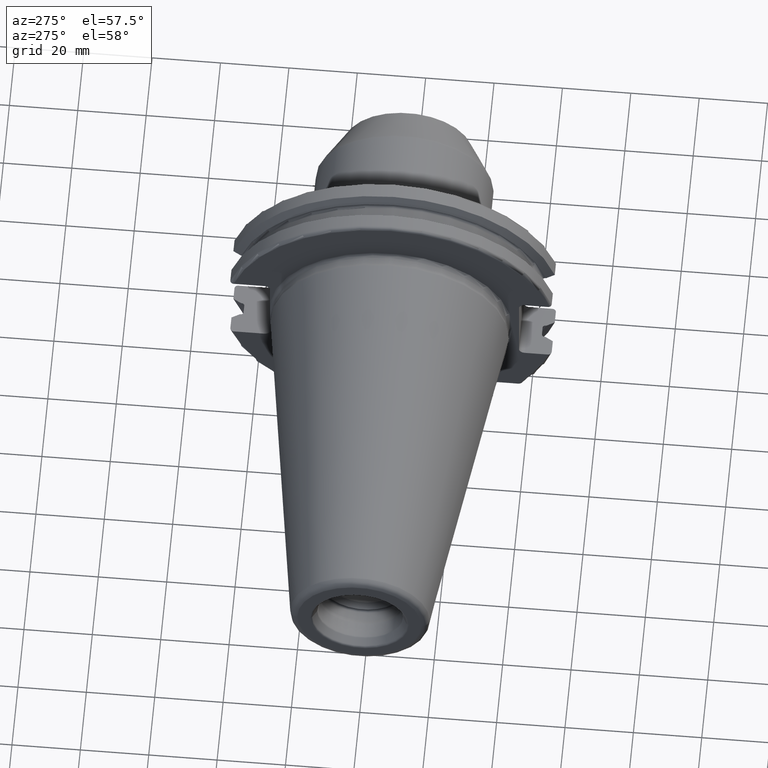
[diagram: clean part render]
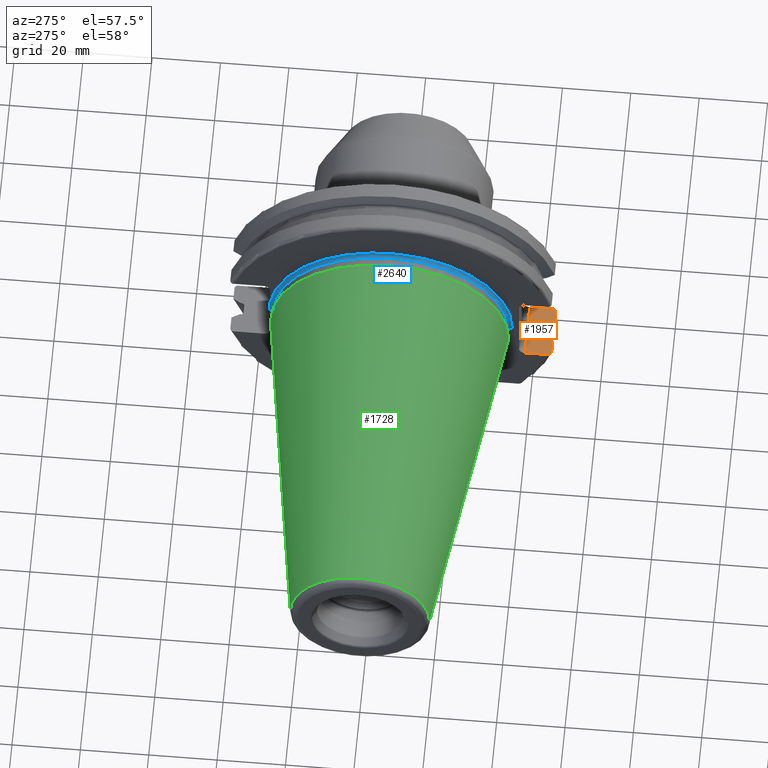
[diagram: same view with three faces highlighted in distinct colors, each labeled with its STEP entity id]
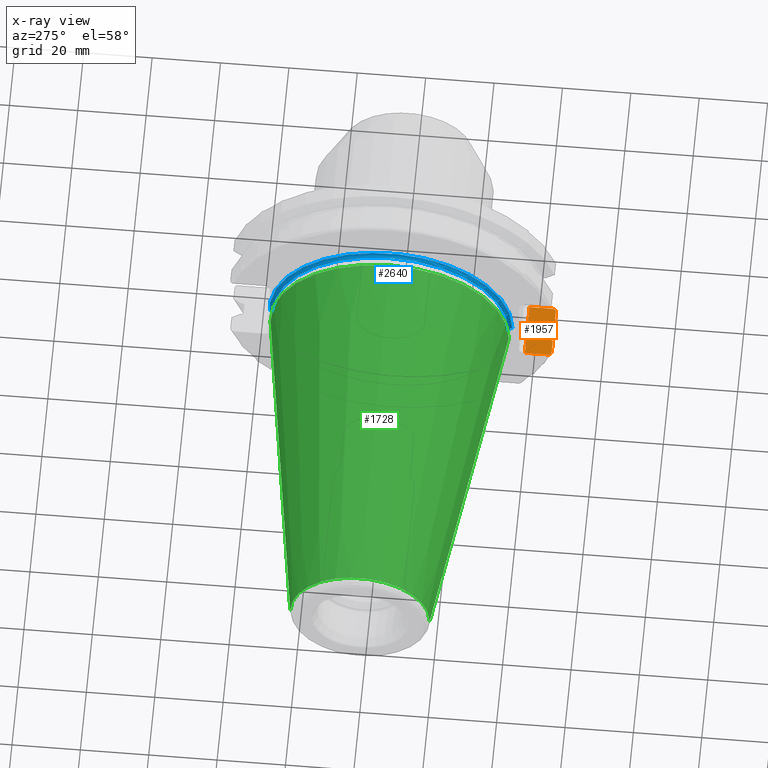
[diagram: x-ray of the same camera — body ghosted, the three highlighted faces saturated]
A machine part, auxiliary view with three faces highlighted in distinct colors.
The next image is the same camera in x-ray (body ghosted, the three faces saturated) — at least one of them is partly hidden behind the body in this view.
Their STEP definitions:

[orange] entity #1957 — the highlighted planar face has unit normal (0, 0, -1).
#168=DIRECTION('',(0.E0,1.E0,0.E0));
#169=VECTOR('',#168,6.711493733886E0);
#170=CARTESIAN_POINT('',(1.905E1,-4.596149373389E1,-1.29E1));
#171=LINE('',#170,#169);
#200=DIRECTION('',(-1.E0,0.E0,0.E0));
#201=VECTOR('',#200,1.585E1);
#202=CARTESIAN_POINT('',(1.905E1,-3.925E1,-1.29E1));
#203=LINE('',#202,#201);
#230=CARTESIAN_POINT('',(1.905E1,-4.596149373389E1,-1.29E1));
#231=CARTESIAN_POINT('',(1.905E1,-4.604025341545E1,-1.29E1));
#232=CARTESIAN_POINT('',(1.903319704314E1,-4.619325673207E1,-1.29E1));
#233=CARTESIAN_POINT('',(1.895943574721E1,-4.641382557540E1,-1.29E1));
#234=CARTESIAN_POINT('',(1.884029019608E1,-4.661163569902E1,-1.29E1));
#235=CARTESIAN_POINT('',(1.868162992187E1,-4.677744958982E1,-1.29E1));
#236=CARTESIAN_POINT('',(1.849033887272E1,-4.690323680095E1,-1.29E1));
#237=CARTESIAN_POINT('',(1.827565953653E1,-4.698148434228E1,-1.29E1));
#238=CARTESIAN_POINT('',(1.812673203795E1,-4.699929686974E1,-1.29E1));
#239=CARTESIAN_POINT('',(1.805E1,-4.699929686974E1,-1.29E1));
#279=DIRECTION('',(0.E0,1.E0,0.E0));
#280=VECTOR('',#279,6.711493733886E0);
#281=CARTESIAN_POINT('',(3.2E0,-4.596149373389E1,-1.29E1));
#282=LINE('',#281,#280);
#465=DIRECTION('',(0.E0,1.E0,0.E0));
#466=VECTOR('',#465,1.952643655423E-1);
#467=CARTESIAN_POINT('',(9.2625E0,-4.460981716077E1,-1.29E1));
#468=LINE('',#467,#466);
#571=DIRECTION('',(0.E0,1.E0,-2.729156701685E-14));
#572=VECTOR('',#571,1.952643655423E-1);
#573=CARTESIAN_POINT('',(1.30875E1,-4.460981716077E1,-1.29E1));
#574=LINE('',#573,#572);
#630=CARTESIAN_POINT('',(1.30875E1,-4.441455279523E1,-1.29E1));
#631=CARTESIAN_POINT('',(1.30875E1,-4.435557140525E1,-1.29E1));
#632=CARTESIAN_POINT('',(1.307499016648E1,-4.424100688760E1,-1.29E1));
#633=CARTESIAN_POINT('',(1.302032710232E1,-4.407610890085E1,-1.29E1));
#634=CARTESIAN_POINT('',(1.293214994527E1,-4.392788522282E1,-1.29E1));
#635=CARTESIAN_POINT('',(1.281390038390E1,-4.380253784054E1,-1.29E1));
#636=CARTESIAN_POINT('',(1.267050623563E1,-4.370675082806E1,-1.29E1));
#637=CARTESIAN_POINT('',(1.250801539042E1,-4.364662320814E1,-1.29E1));
#638=CARTESIAN_POINT('',(1.239551042481E1,-4.363301502303E1,-1.29E1));
#639=CARTESIAN_POINT('',(1.23375E1,-4.363301502303E1,-1.29E1));
#670=DIRECTION('',(1.E0,0.E0,0.E0));
#671=VECTOR('',#670,2.325E0);
#672=CARTESIAN_POINT('',(1.00125E1,-4.363301502303E1,-1.29E1));
#673=LINE('',#672,#671);
#710=CARTESIAN_POINT('',(1.00125E1,-4.363301502303E1,-1.29E1));
#711=CARTESIAN_POINT('',(9.954459038642E0,-4.363301502303E1,-1.29E1));
#712=CARTESIAN_POINT('',(9.841879456025E0,-4.364663453854E1,-1.29E1));
#713=CARTESIAN_POINT('',(9.679181789370E0,-4.370688679607E1,-1.29E1));
#714=CARTESIAN_POINT('',(9.535649484354E0,-4.380290373946E1,-1.29E1));
#715=CARTESIAN_POINT('',(9.417489807997E0,-4.392837618076E1,-1.29E1));
#716=CARTESIAN_POINT('',(9.329516551915E0,-4.407649589532E1,-1.29E1));
#717=CARTESIAN_POINT('',(9.274989387756E0,-4.424117249764E1,-1.29E1));
#718=CARTESIAN_POINT('',(9.2625E0,-4.435562679308E1,-1.29E1));
#719=CARTESIAN_POINT('',(9.2625E0,-4.441455279523E1,-1.29E1));
#781=CARTESIAN_POINT('',(4.2E0,-4.699929686974E1,-1.29E1));
#782=CARTESIAN_POINT('',(4.123252333679E0,-4.699929686974E1,-1.29E1));
#783=CARTESIAN_POINT('',(3.974283567116E0,-4.698148666181E1,-1.29E1));
#784=CARTESIAN_POINT('',(3.759372583830E0,-4.690310671304E1,-1.29E1));
#785=CARTESIAN_POINT('',(3.568100173391E0,-4.677722228850E1,-1.29E1));
#786=CARTESIAN_POINT('',(3.409493655806E0,-4.661135458292E1,-1.29E1));
#787=CARTESIAN_POINT('',(3.290442678355E0,-4.641353235870E1,-1.29E1));
#788=CARTESIAN_POINT('',(3.216801719921E0,-4.619318544857E1,-1.29E1));
#789=CARTESIAN_POINT('',(3.2E0,-4.604023191736E1,-1.29E1));
#790=CARTESIAN_POINT('',(3.2E0,-4.596149373389E1,-1.29E1));
#839=DIRECTION('',(1.E0,0.E0,0.E0));
#840=VECTOR('',#839,3.734621614173E0);
#841=CARTESIAN_POINT('',(4.2E0,-4.699929686974E1,-1.29E1));
#842=LINE('',#841,#840);
#852=DIRECTION('',(1.E0,0.E0,0.E0));
#853=VECTOR('',#852,3.634621614173E0);
#854=CARTESIAN_POINT('',(1.441537838583E1,-4.699929686974E1,-1.29E1));
#855=LINE('',#854,#853);
#884=CARTESIAN_POINT('',(7.934621614173E0,-4.699929686974E1,-1.29E1));
#885=CARTESIAN_POINT('',(8.085480915039E0,-4.672833723043E1,-1.29E1));
#886=CARTESIAN_POINT('',(8.384988643814E0,-4.619006057421E1,-1.29E1));
#887=CARTESIAN_POINT('',(8.827579780447E0,-4.539363402665E1,-1.29E1));
#888=CARTESIAN_POINT('',(9.118260754177E0,-4.486988275438E1,-1.29E1));
#889=CARTESIAN_POINT('',(9.2625E0,-4.460981716077E1,-1.29E1));
#917=CARTESIAN_POINT('',(1.441537838583E1,-4.699929686974E1,-1.29E1));
#918=CARTESIAN_POINT('',(1.426451908496E1,-4.672833723043E1,-1.29E1));
#919=CARTESIAN_POINT('',(1.396501135619E1,-4.619006057421E1,-1.29E1));
#920=CARTESIAN_POINT('',(1.352242021955E1,-4.539363402665E1,-1.29E1));
#921=CARTESIAN_POINT('',(1.323173924582E1,-4.486988275438E1,-1.29E1));
#922=CARTESIAN_POINT('',(1.30875E1,-4.460981716077E1,-1.29E1));
#1476=CARTESIAN_POINT('',(9.2625E0,-4.460981716077E1,-1.29E1));
#1477=CARTESIAN_POINT('',(9.2625E0,-4.441455279523E1,-1.29E1));
#1478=VERTEX_POINT('',#1476);
#1479=VERTEX_POINT('',#1477);
#1498=CARTESIAN_POINT('',(1.30875E1,-4.460981716077E1,-1.29E1));
#1499=CARTESIAN_POINT('',(1.30875E1,-4.441455279523E1,-1.29E1));
#1500=VERTEX_POINT('',#1498);
#1501=VERTEX_POINT('',#1499);
#1509=VERTEX_POINT('',#710);
#1512=CARTESIAN_POINT('',(1.23375E1,-4.363301502303E1,-1.29E1));
#1513=VERTEX_POINT('',#1512);
#1515=VERTEX_POINT('',#917);
#1517=VERTEX_POINT('',#884);
#1530=CARTESIAN_POINT('',(4.2E0,-4.699929686974E1,-1.29E1));
#1531=VERTEX_POINT('',#1530);
#1532=CARTESIAN_POINT('',(1.805E1,-4.699929686974E1,-1.29E1));
#1533=VERTEX_POINT('',#1532);
#1542=VERTEX_POINT('',#230);
#1544=VERTEX_POINT('',#790);
#1573=CARTESIAN_POINT('',(1.905E1,-3.925E1,-1.29E1));
#1574=CARTESIAN_POINT('',(3.2E0,-3.925E1,-1.29E1));
#1575=VERTEX_POINT('',#1573);
#1576=VERTEX_POINT('',#1574);
#1924=CARTESIAN_POINT('',(1.905E1,-5.25E1,-1.29E1));
#1925=DIRECTION('',(0.E0,0.E0,-1.E0));
#1926=DIRECTION('',(0.E0,1.E0,0.E0));
#1927=AXIS2_PLACEMENT_3D('',#1924,#1925,#1926);
#1928=PLANE('',#1927);
#1929=ORIENTED_EDGE('',*,*,#1917,.F.);
#1930=ORIENTED_EDGE('',*,*,#1882,.F.);
#1932=ORIENTED_EDGE('',*,*,#1931,.T.);
#1934=ORIENTED_EDGE('',*,*,#1933,.F.);
#1936=ORIENTED_EDGE('',*,*,#1935,.T.);
#1938=ORIENTED_EDGE('',*,*,#1937,.T.);
#1940=ORIENTED_EDGE('',*,*,#1939,.T.);
#1942=ORIENTED_EDGE('',*,*,#1941,.F.);
#1944=ORIENTED_EDGE('',*,*,#1943,.T.);
#1946=ORIENTED_EDGE('',*,*,#1945,.F.);
#1948=ORIENTED_EDGE('',*,*,#1947,.F.);
#1950=ORIENTED_EDGE('',*,*,#1949,.F.);
#1952=ORIENTED_EDGE('',*,*,#1951,.T.);
#1954=ORIENTED_EDGE('',*,*,#1953,.T.);
#1955=EDGE_LOOP('',(#1929,#1930,#1932,#1934,#1936,#1938,#1940,#1942,#1944,#1946,
#1948,#1950,#1952,#1954));
#1956=FACE_OUTER_BOUND('',#1955,.F.);
#1957=ADVANCED_FACE('',(#1956),#1928,.F.);
#240=B_SPLINE_CURVE_WITH_KNOTS('',3,(#230,#231,#232,#233,#234,#235,#236,#237,
#238,#239),.UNSPECIFIED.,.F.,.F.,(4,1,1,1,1,1,1,4),(0.E0,1.428571428571E-1,
2.857142857143E-1,4.285714285714E-1,5.714285714286E-1,7.142857142857E-1,
8.571428571429E-1,1.E0),.UNSPECIFIED.);
#640=B_SPLINE_CURVE_WITH_KNOTS('',3,(#630,#631,#632,#633,#634,#635,#636,#637,
#638,#639),.UNSPECIFIED.,.F.,.F.,(4,1,1,1,1,1,1,4),(0.E0,1.428571428571E-1,
2.857142857143E-1,4.285714285714E-1,5.714285714286E-1,7.142857142857E-1,
8.571428571429E-1,1.E0),.UNSPECIFIED.);
#720=B_SPLINE_CURVE_WITH_KNOTS('',3,(#710,#711,#712,#713,#714,#715,#716,#717,
#718,#719),.UNSPECIFIED.,.F.,.F.,(4,1,1,1,1,1,1,4),(0.E0,1.428571428571E-1,
2.857142857143E-1,4.285714285714E-1,5.714285714286E-1,7.142857142857E-1,
8.571428571429E-1,1.E0),.UNSPECIFIED.);
#791=B_SPLINE_CURVE_WITH_KNOTS('',3,(#781,#782,#783,#784,#785,#786,#787,#788,
#789,#790),.UNSPECIFIED.,.F.,.F.,(4,1,1,1,1,1,1,4),(0.E0,1.428571428571E-1,
2.857142857143E-1,4.285714285714E-1,5.714285714286E-1,7.142857142857E-1,
8.571428571429E-1,1.E0),.UNSPECIFIED.);
#890=B_SPLINE_CURVE_WITH_KNOTS('',3,(#884,#885,#886,#887,#888,#889),
.UNSPECIFIED.,.F.,.F.,(4,1,1,4),(0.E0,3.333333333333E-1,6.666666666667E-1,1.E0),
.UNSPECIFIED.);
#923=B_SPLINE_CURVE_WITH_KNOTS('',3,(#917,#918,#919,#920,#921,#922),
.UNSPECIFIED.,.F.,.F.,(4,1,1,4),(0.E0,3.333333333333E-1,6.666666666667E-1,1.E0),
.UNSPECIFIED.);
#1882=EDGE_CURVE('',#1542,#1575,#171,.T.);
#1917=EDGE_CURVE('',#1575,#1576,#203,.T.);
#1931=EDGE_CURVE('',#1542,#1533,#240,.T.);
#1933=EDGE_CURVE('',#1515,#1533,#855,.T.);
#1935=EDGE_CURVE('',#1515,#1500,#923,.T.);
#1937=EDGE_CURVE('',#1500,#1501,#574,.T.);
#1939=EDGE_CURVE('',#1501,#1513,#640,.T.);
#1941=EDGE_CURVE('',#1509,#1513,#673,.T.);
#1943=EDGE_CURVE('',#1509,#1479,#720,.T.);
#1945=EDGE_CURVE('',#1478,#1479,#468,.T.);
#1947=EDGE_CURVE('',#1517,#1478,#890,.T.);
#1949=EDGE_CURVE('',#1531,#1517,#842,.T.);
#1951=EDGE_CURVE('',#1531,#1544,#791,.T.);
#1953=EDGE_CURVE('',#1544,#1576,#282,.T.);

[blue] entity #2640 — the highlighted toroidal blend (fillet) surface has major radius 35.575 mm and minor (blend) radius 1 mm.
#78=CARTESIAN_POINT('',(2.2E0,0.E0,0.E0));
#79=DIRECTION('',(1.E0,0.E0,0.E0));
#80=DIRECTION('',(0.E0,1.E0,0.E0));
#81=AXIS2_PLACEMENT_3D('',#78,#79,#80);
#107=CARTESIAN_POINT('',(2.2E0,3.5575E1,0.E0));
#108=DIRECTION('',(0.E0,0.E0,-1.E0));
#109=DIRECTION('',(9.614442261515E-1,-2.75E-1,0.E0));
#110=AXIS2_PLACEMENT_3D('',#107,#108,#109);
#112=CARTESIAN_POINT('',(2.2E0,-3.5575E1,0.E0));
#113=DIRECTION('',(0.E0,0.E0,1.E0));
#114=DIRECTION('',(1.E0,0.E0,0.E0));
#115=AXIS2_PLACEMENT_3D('',#112,#113,#114);
#936=CARTESIAN_POINT('',(3.2E0,3.53E1,4.414818795828E0));
#937=CARTESIAN_POINT('',(3.2E0,3.53E1,4.213098987331E0));
#938=CARTESIAN_POINT('',(3.198126239348E0,3.53E1,3.808889642023E0));
#939=CARTESIAN_POINT('',(3.191792541487E0,3.53E1,3.202078124088E0));
#940=CARTESIAN_POINT('',(3.183664786024E0,3.53E1,2.589329618622E0));
#941=CARTESIAN_POINT('',(3.175245424270E0,3.53E1,1.967199873297E0));
#942=CARTESIAN_POINT('',(3.167873523896E0,3.53E1,1.331533559003E0));
#943=CARTESIAN_POINT('',(3.162733016852E0,3.53E1,6.790196322900E-1));
#944=CARTESIAN_POINT('',(3.161444226151E0,3.53E1,2.286685292051E-1));
#945=CARTESIAN_POINT('',(3.161444226151E0,3.53E1,-1.048836461230E-13));
#947=CARTESIAN_POINT('',(3.2E0,0.E0,0.E0));
#948=DIRECTION('',(1.E0,0.E0,0.E0));
#949=DIRECTION('',(0.E0,9.922698524245E-1,1.240989120402E-1));
#950=AXIS2_PLACEMENT_3D('',#947,#948,#949);
#1404=CARTESIAN_POINT('',(2.2E0,3.4575E1,0.E0));
#1406=VERTEX_POINT('',#1404);
#1408=CARTESIAN_POINT('',(3.2E0,-3.5575E1,0.E0));
#1409=CARTESIAN_POINT('',(2.2E0,-3.4575E1,0.E0));
#1410=VERTEX_POINT('',#1408);
#1411=VERTEX_POINT('',#1409);
#1534=VERTEX_POINT('',#936);
#1535=VERTEX_POINT('',#945);
#2628=CARTESIAN_POINT('',(2.2E0,0.E0,0.E0));
#2629=DIRECTION('',(1.E0,0.E0,0.E0));
#2630=DIRECTION('',(0.E0,-1.E0,0.E0));
#2631=AXIS2_PLACEMENT_3D('',#2628,#2629,#2630);
#2632=TOROIDAL_SURFACE('',#2631,3.5575E1,1.E0);
#2633=ORIENTED_EDGE('',*,*,#1824,.F.);
#2634=ORIENTED_EDGE('',*,*,#2060,.T.);
#2635=ORIENTED_EDGE('',*,*,#1808,.T.);
#2636=ORIENTED_EDGE('',*,*,#1777,.F.);
#2637=ORIENTED_EDGE('',*,*,#1805,.F.);
#2638=EDGE_LOOP('',(#2633,#2634,#2635,#2636,#2637));
#2639=FACE_OUTER_BOUND('',#2638,.F.);
#2640=ADVANCED_FACE('',(#2639),#2632,.F.);
#82=CIRCLE('',#81,3.4575E1);
#111=CIRCLE('',#110,1.E0);
#116=CIRCLE('',#115,1.E0);
#946=B_SPLINE_CURVE_WITH_KNOTS('',3,(#936,#937,#938,#939,#940,#941,#942,#943,
#944,#945),.UNSPECIFIED.,.F.,.F.,(4,1,1,1,1,1,1,4),(0.E0,1.428571428571E-1,
2.857142857143E-1,4.285714285714E-1,5.714285714286E-1,7.142857142857E-1,
8.571428571429E-1,1.E0),.UNSPECIFIED.);
#951=CIRCLE('',#950,3.5575E1);
#1777=EDGE_CURVE('',#1406,#1411,#82,.T.);
#1805=EDGE_CURVE('',#1535,#1406,#111,.T.);
#1808=EDGE_CURVE('',#1410,#1411,#116,.T.);
#1824=EDGE_CURVE('',#1534,#1535,#946,.T.);
#2060=EDGE_CURVE('',#1534,#1410,#951,.T.);

[green] entity #1728 — the highlighted conical surface has half-angle 8.298 deg.
#37=CARTESIAN_POINT('',(-9.967471700563E1,0.E0,0.E0));
#38=DIRECTION('',(1.E0,0.E0,0.E0));
#39=DIRECTION('',(0.E0,1.E0,0.E0));
#40=AXIS2_PLACEMENT_3D('',#37,#38,#39);
#42=CARTESIAN_POINT('',(-4.896823332305E-1,0.E0,0.E0));
#43=DIRECTION('',(1.E0,0.E0,0.E0));
#44=DIRECTION('',(0.E0,1.E0,0.E0));
#45=AXIS2_PLACEMENT_3D('',#42,#43,#44);
#47=DIRECTION('',(-9.895312636440E-1,-1.443186691705E-1,0.E0));
#48=VECTOR('',#47,1.002343617797E2);
#49=CARTESIAN_POINT('',(-4.896823332305E-1,3.485358204157E1,0.E0));
#50=LINE('',#49,#48);
#51=DIRECTION('',(-9.895312636440E-1,1.443186691705E-1,0.E0));
#52=VECTOR('',#51,1.002343617797E2);
#53=CARTESIAN_POINT('',(-4.896823332305E-1,-3.485358204157E1,0.E0));
#54=LINE('',#53,#52);
#1396=CARTESIAN_POINT('',(-9.967471700563E1,2.038789234437E1,0.E0));
#1398=VERTEX_POINT('',#1396);
#1400=CARTESIAN_POINT('',(-9.967471700563E1,-2.038789234437E1,0.E0));
#1402=VERTEX_POINT('',#1400);
#1464=CARTESIAN_POINT('',(-4.896823332305E-1,3.485358204157E1,0.E0));
#1465=VERTEX_POINT('',#1464);
#1466=CARTESIAN_POINT('',(-4.896823332305E-1,-3.485358204157E1,0.E0));
#1467=VERTEX_POINT('',#1466);
#1714=CARTESIAN_POINT('',(-5.008219966943E1,0.E0,0.E0));
#1715=DIRECTION('',(1.E0,0.E0,0.E0));
#1716=DIRECTION('',(0.E0,-1.E0,0.E0));
#1717=AXIS2_PLACEMENT_3D('',#1714,#1715,#1716);
#1718=CONICAL_SURFACE('',#1717,2.762073719297E1,8.297826828206E0);
#1720=ORIENTED_EDGE('',*,*,#1719,.F.);
#1722=ORIENTED_EDGE('',*,*,#1721,.T.);
#1724=ORIENTED_EDGE('',*,*,#1723,.T.);
#1725=ORIENTED_EDGE('',*,*,#1707,.F.);
#1726=EDGE_LOOP('',(#1720,#1722,#1724,#1725));
#1727=FACE_OUTER_BOUND('',#1726,.F.);
#1728=ADVANCED_FACE('',(#1727),#1718,.T.);
#41=CIRCLE('',#40,2.038789234437E1);
#46=CIRCLE('',#45,3.485358204157E1);
#1707=EDGE_CURVE('',#1398,#1402,#41,.T.);
#1719=EDGE_CURVE('',#1465,#1398,#50,.T.);
#1721=EDGE_CURVE('',#1465,#1467,#46,.T.);
#1723=EDGE_CURVE('',#1467,#1402,#54,.T.);